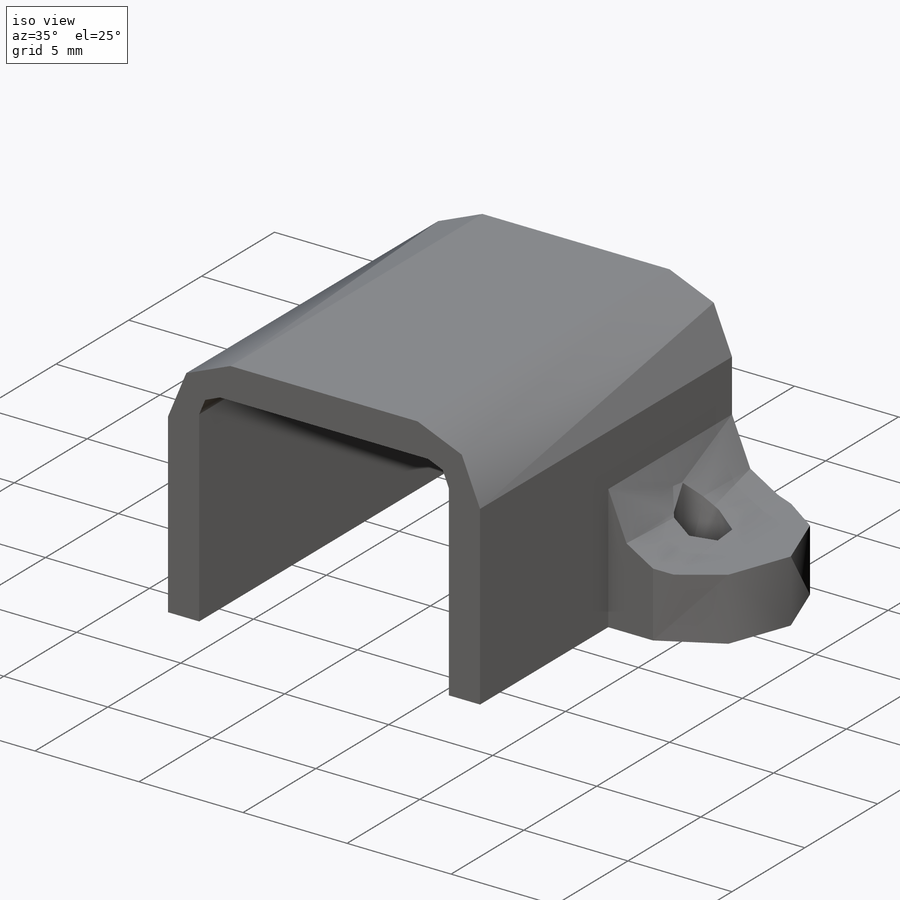
[diagram: iso view]
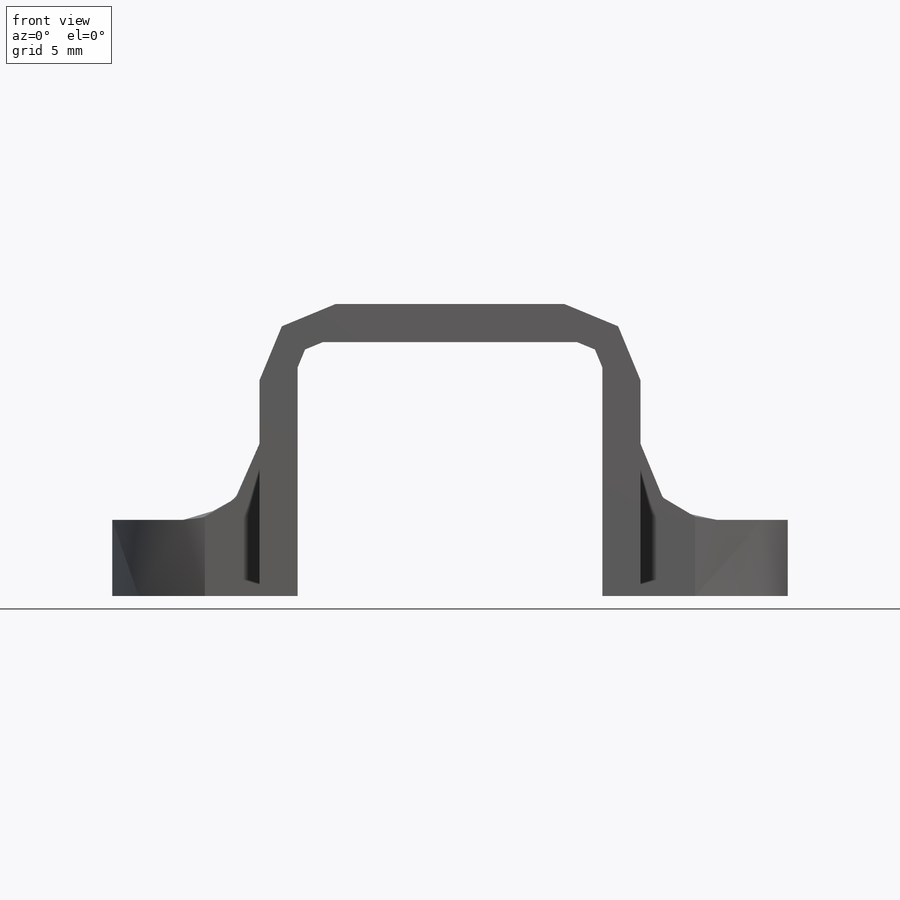
[diagram: front view]
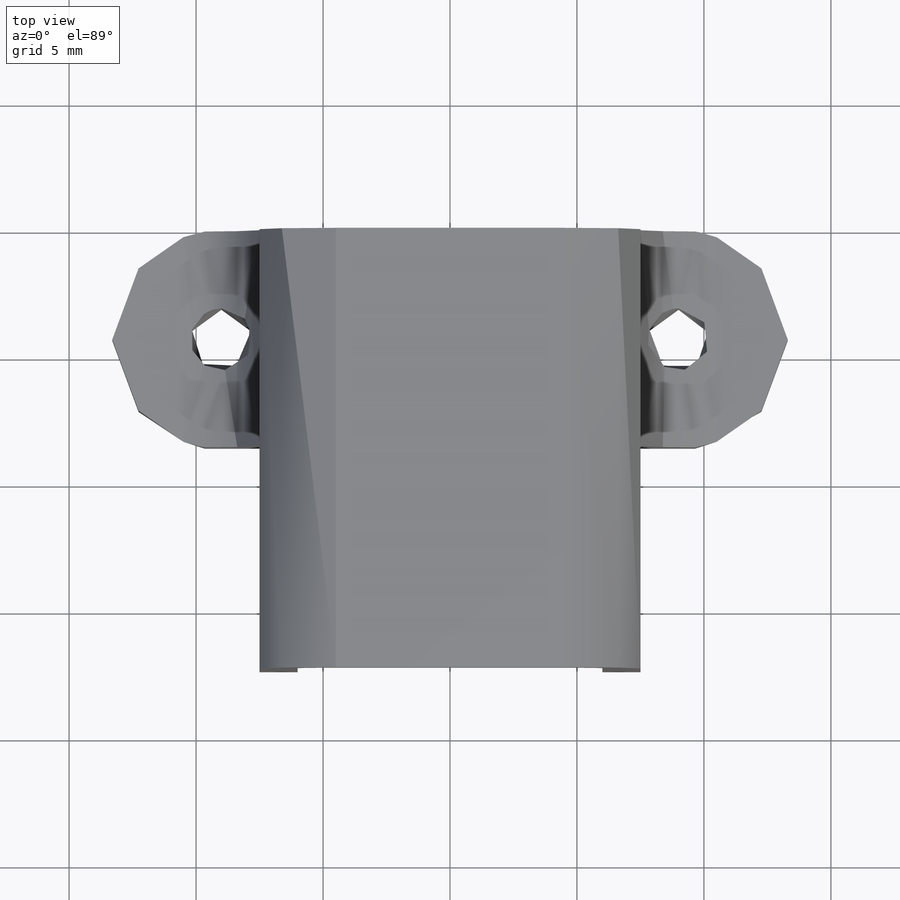
[diagram: top view]
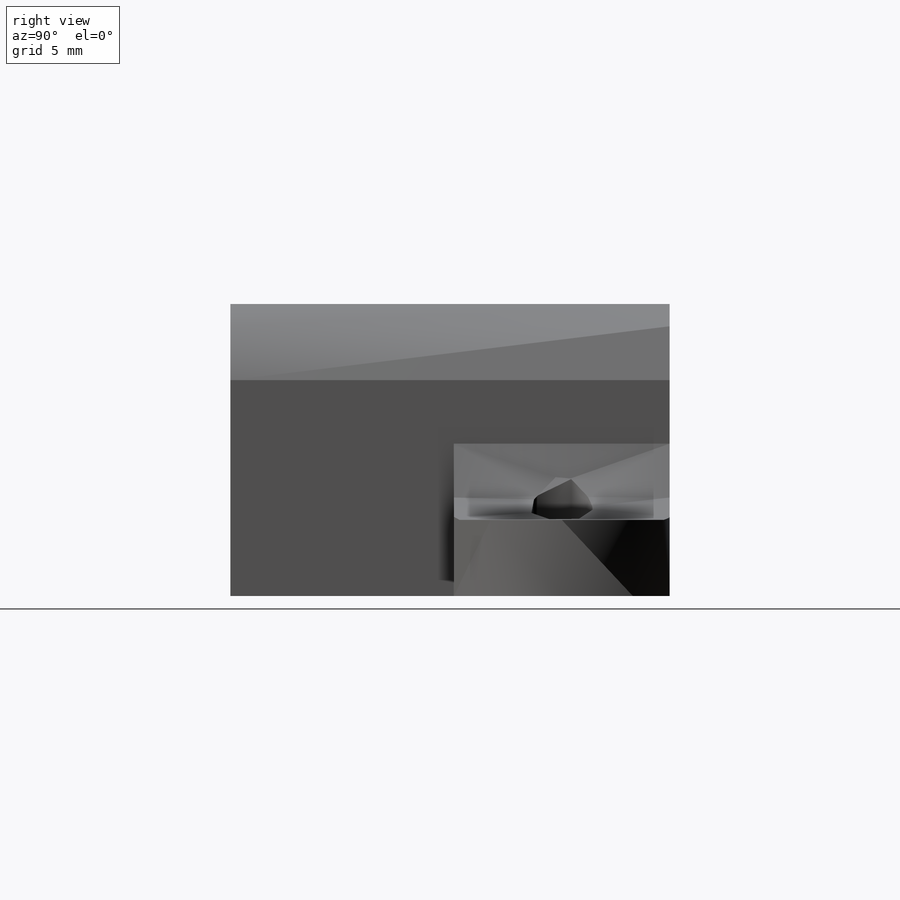
[diagram: right view]
SOLIDWORKS PART (.sldprt)
format: sldprt  version: not decoded by parser v0  size: 281,600 bytes
history: native  units: mm
features: sketch x5, cut_extrude x2, material x1, extrude x1, hole x1 (+16 scaffold rows collapsed)
feature tree (26):
  scaffold x16  (default folders/planes/origin — collapsed)
  material  "ABS"
  sketch  "Sketch1"  dims[c1.D5=3.0mm c1.D8=1.0mm c1.D1=26.6mm c1.D2=15.0mm c1.D3=11.5mm c1.D4=3.0mm c1.D6=9.2177mm c2.D6=~178.571478deg c3.D6=2.0mm c3.D7=1.5mm c4.D6=12.0mm c4.D9=1.5mm]
  extrude  "Extrude1"  Depth=17.3mm
  sketch  "Sketch2"  dims[D1=5.8mm]
  cut_extrude  "Extrude2"  Depth=8.8mm
  sketch  "Sketch3"  dims[c1.D1=2.0mm c1.D2=2.0mm c1.D3=2.0mm c2.D2=18.0mm c2.D3=9.0mm]
  cut_extrude  "Extrude3"  Depth=5mm
  hole  "#2 Clearance Hole1"  Diameter=2.4384mm Depth=11.5mm
  sketch  "3DSketch1"
  sketch  "Sketch4"  dims[hole-wizard template sketch: 60 standard entries collapsed; hole parameters kept: c18.Thru Hole Depth=11.5mm]
decode coverage: 8 of 9 modeling features carry decoded parameters
note: ~ marks probable driven/reference dimensions
note: suppression state not decoded; provenance and decode notes live in map.json
